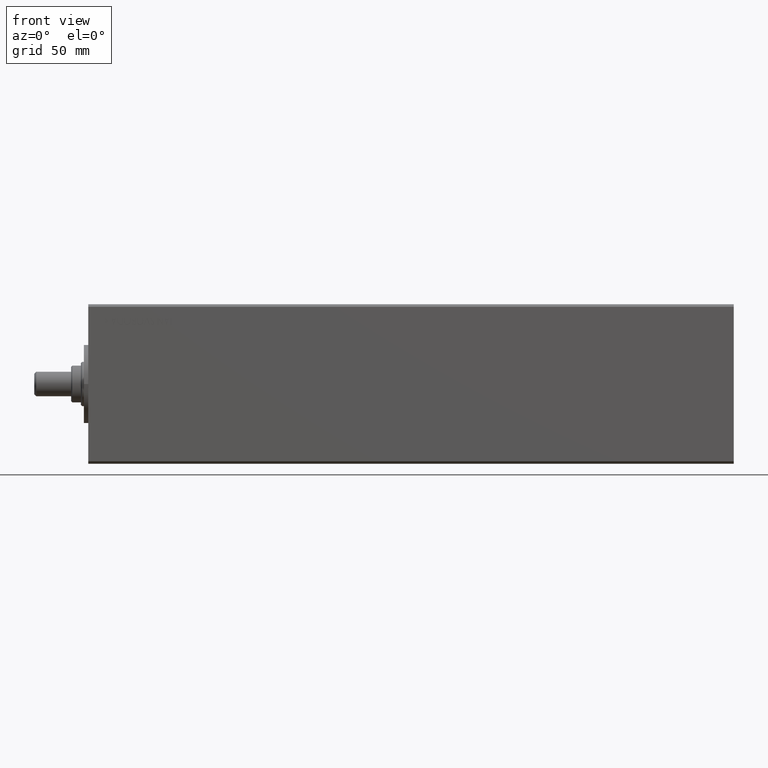
[diagram: clean part render]
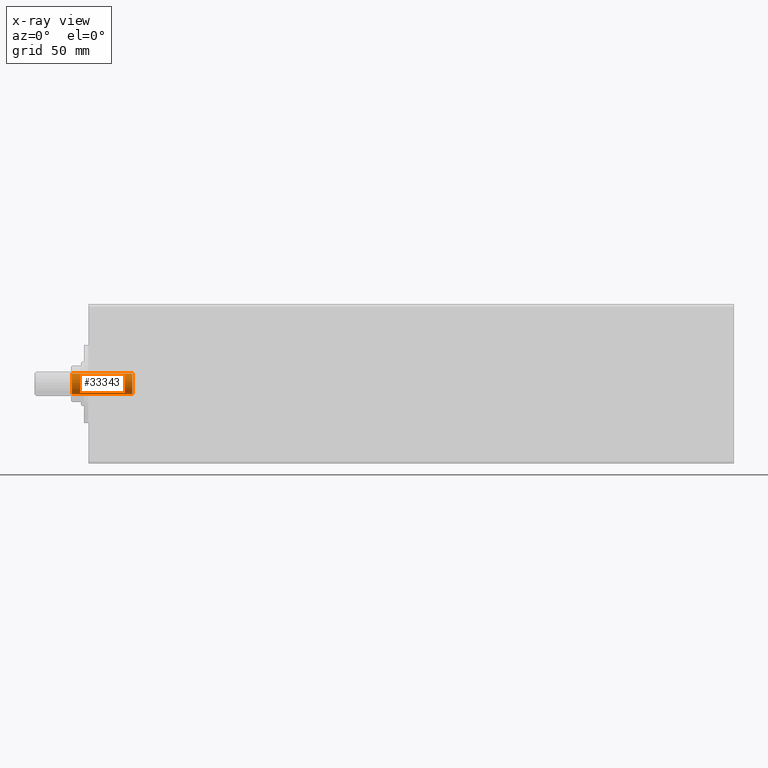
[diagram: x-ray — body ghosted, one internal face saturated and labeled with its STEP entity id]
A machine part, front view, then the same camera in x-ray: the body is ghosted and one INTERNAL B-rep face — a face not visible from any outside direction — is saturated and labeled: STEP entity #33343.
In plain terms, the highlighted cylindrical surface (edge-blend (fillet) strip) has radius 4.25 mm, axis along (-1, 0, 0).
Its self-contained STEP definition (entity closure, byte-faithful):
#4892 = ORIENTED_EDGE ( 'NONE', *, *, #19380, .T. ) ;
#5154 = DIRECTION ( 'NONE',  ( -0.000000000000000000, -0.000000000000000000, 1.000000000000000000 ) ) ;
#5634 = VECTOR ( 'NONE', #5154, 1000.000000000000000 ) ;
#6023 = EDGE_CURVE ( 'NONE', #18229, #9697, #18485, .T. ) ;
#7235 = FACE_OUTER_BOUND ( 'NONE', #7943, .T. ) ;
#7458 = CARTESIAN_POINT ( 'NONE',  ( -4.249999999999996447, 5.204748896376247741E-16, 257.1999999999999886 ) ) ;
#7943 = EDGE_LOOP ( 'NONE', ( #39842, #30977, #4892, #41525 ) ) ;
#9697 = VERTEX_POINT ( 'NONE', #39809 ) ;
#10423 = AXIS2_PLACEMENT_3D ( 'NONE', #19039, #37412, #26855 ) ;
#11589 = CARTESIAN_POINT ( 'NONE',  ( 4.249999999999996447, 0.000000000000000000, 257.1999999999999886 ) ) ;
#12367 = EDGE_CURVE ( 'NONE', #18229, #15942, #17576, .T. ) ;
#13225 = CYLINDRICAL_SURFACE ( 'NONE', #17856, 4.249999999999996447 ) ;
#13685 = CIRCLE ( 'NONE', #32775, 4.249999999999996447 ) ;
#15942 = VERTEX_POINT ( 'NONE', #33131 ) ;
#17576 = LINE ( 'NONE', #7458, #20087 ) ;
#17577 = DIRECTION ( 'NONE',  ( -0.000000000000000000, -0.000000000000000000, 1.000000000000000000 ) ) ;
#17856 = AXIS2_PLACEMENT_3D ( 'NONE', #27469, #17577, #31582 ) ;
#17873 = CARTESIAN_POINT ( 'NONE',  ( 0.000000000000000000, 0.000000000000000000, 256.9000000000000909 ) ) ;
#18229 = VERTEX_POINT ( 'NONE', #43907 ) ;
#18485 = CIRCLE ( 'NONE', #10423, 4.249999999999994671 ) ;
#19039 = CARTESIAN_POINT ( 'NONE',  ( 0.000000000000000000, 0.000000000000000000, 232.1999999999999886 ) ) ;
#19380 = EDGE_CURVE ( 'NONE', #15942, #34663, #13685, .T. ) ;
#19859 = EDGE_CURVE ( 'NONE', #9697, #34663, #43302, .T. ) ;
#20087 = VECTOR ( 'NONE', #34572, 1000.000000000000000 ) ;
#25456 = DIRECTION ( 'NONE',  ( 0.000000000000000000, 0.000000000000000000, 1.000000000000000000 ) ) ;
#26855 = DIRECTION ( 'NONE',  ( 1.000000000000000000, 0.000000000000000000, 0.000000000000000000 ) ) ;
#27469 = CARTESIAN_POINT ( 'NONE',  ( 0.000000000000000000, 0.000000000000000000, 257.1999999999999886 ) ) ;
#28655 = DIRECTION ( 'NONE',  ( 1.000000000000000000, 0.000000000000000000, 0.000000000000000000 ) ) ;
#30977 = ORIENTED_EDGE ( 'NONE', *, *, #12367, .T. ) ;
#31582 = DIRECTION ( 'NONE',  ( 1.000000000000000000, 0.000000000000000000, 0.000000000000000000 ) ) ;
#32775 = AXIS2_PLACEMENT_3D ( 'NONE', #17873, #25456, #28655 ) ;
#33131 = CARTESIAN_POINT ( 'NONE',  ( -4.249999999999996447, 5.204748896376247741E-16, 256.9000000000000909 ) ) ;
#33343 = ADVANCED_FACE ( 'NONE', ( #7235 ), #13225, .F. ) ;
#34572 = DIRECTION ( 'NONE',  ( -0.000000000000000000, -0.000000000000000000, 1.000000000000000000 ) ) ;
#34663 = VERTEX_POINT ( 'NONE', #38988 ) ;
#37412 = DIRECTION ( 'NONE',  ( -0.000000000000000000, -0.000000000000000000, 1.000000000000000000 ) ) ;
#38988 = CARTESIAN_POINT ( 'NONE',  ( 4.249999999999996447, 0.000000000000000000, 256.9000000000000909 ) ) ;
#39809 = CARTESIAN_POINT ( 'NONE',  ( 4.249999999999994671, 0.000000000000000000, 232.1999999999999886 ) ) ;
#39842 = ORIENTED_EDGE ( 'NONE', *, *, #6023, .F. ) ;
#41525 = ORIENTED_EDGE ( 'NONE', *, *, #19859, .F. ) ;
#43302 = LINE ( 'NONE', #11589, #5634 ) ;
#43907 = CARTESIAN_POINT ( 'NONE',  ( -4.249999999999994671, 5.204748896376244783E-16, 232.1999999999999886 ) ) ;